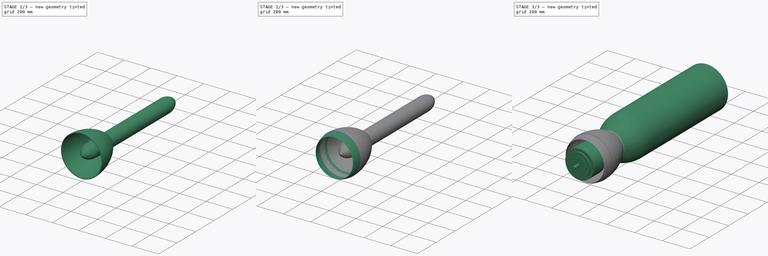
[diagram: build sequence overview — one tinted view per stage of 3, left to right]
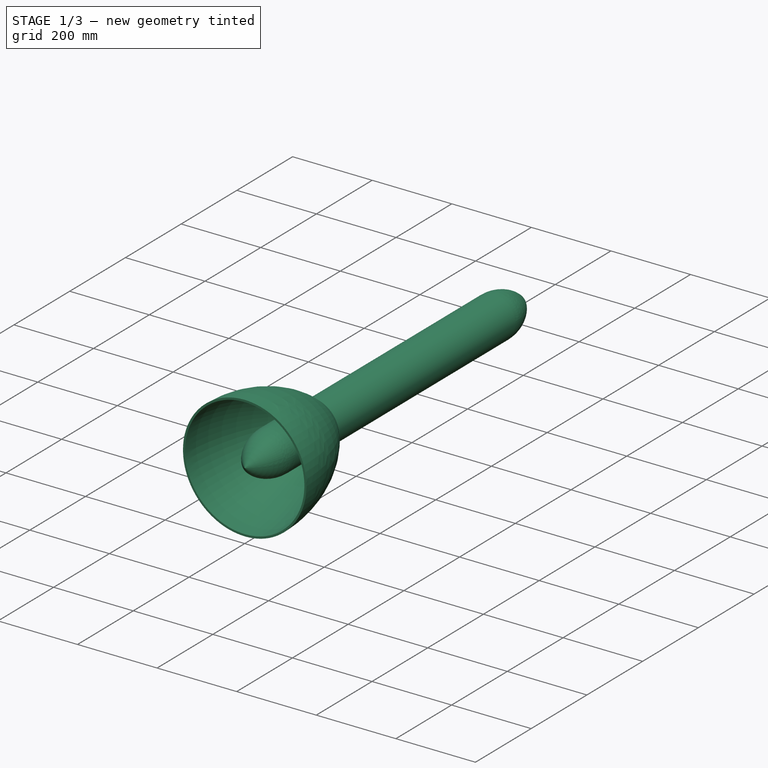
[diagram: stage 1 of 3 — iso view after this stage's code; geometry added in this stage tinted green]
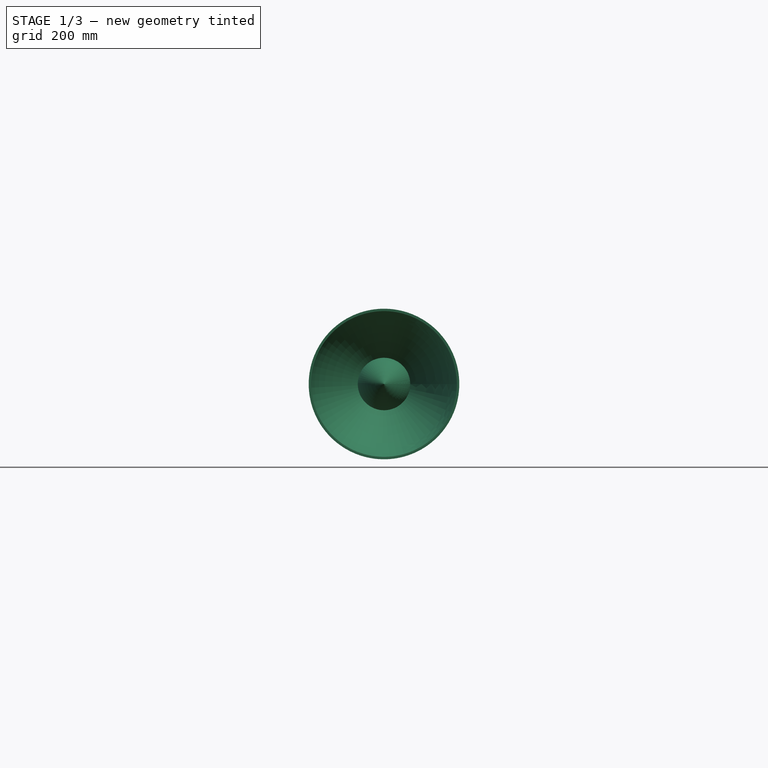
[diagram: stage 1 of 3 — front view after this stage's code; geometry added in this stage tinted green]
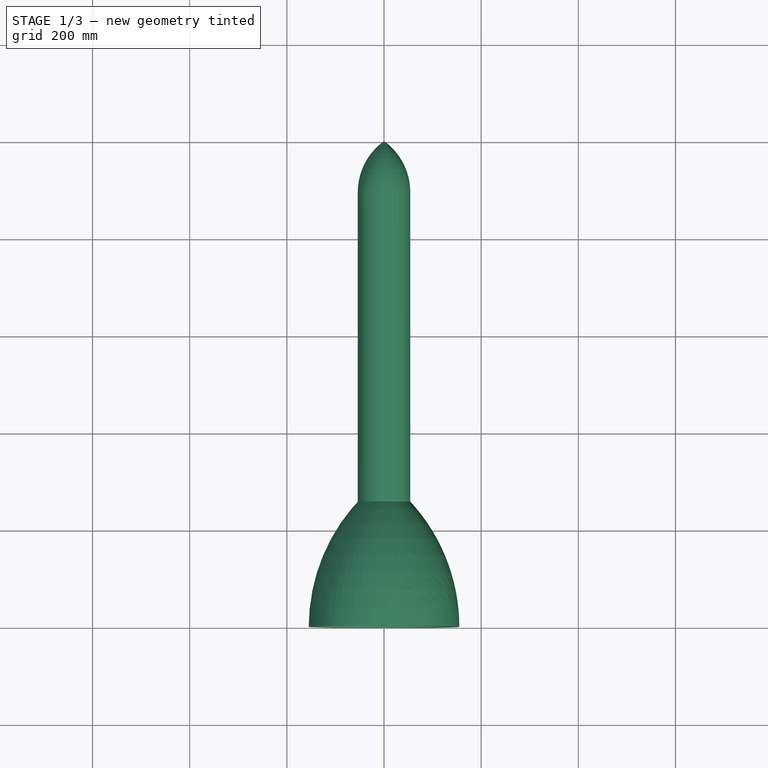
[diagram: stage 1 of 3 — top view after this stage's code; geometry added in this stage tinted green]
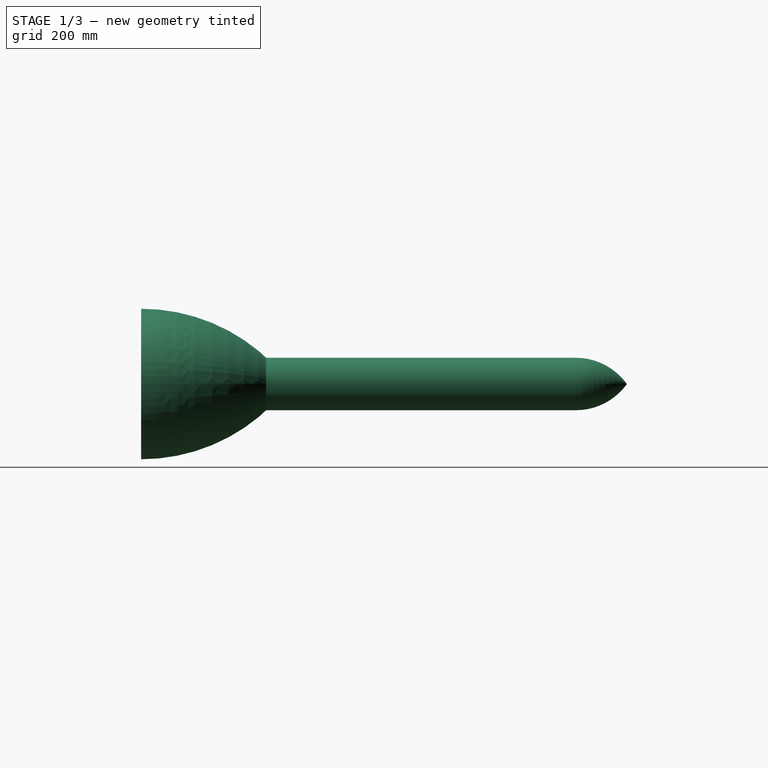
[diagram: stage 1 of 3 — right view after this stage's code; geometry added in this stage tinted green]
FCSTD DOCUMENT  (FreeCAD 0.18R16131 (Git))
Label: MAIN
License: All rights reserved
LicenseURL: http://en.wikipedia.org/wiki/All_rights_reserved
objects: Sketcher::SketchObject×5, PartDesign::Revolution×5, PartDesign::Body×5
note: 20 computed .brp shape members not serialized (recipe doc carries the construction recipe); baked Part::Feature solids carry a one-line shape summary decoded from their .brp

FEATURE [PartDesign::Body] Body002  label="protector"
  Group = -> [Sketch003,Revolution002]
  Origin = -> Origin002
  Tip = -> Revolution002
FEATURE [Sketcher::SketchObject] Sketch004  label="nose-pointy-SC"
  MapMode = 5
  Support = -> [XY_Plane003]
  sketch-geometry (4):
    g0: ArcOfCircle CenterX=-225 CenterY=0 CenterZ=0 NormalX=0 NormalY=0 NormalZ=1 AngleXU=0 Radius=375 StartAngle=0 EndAngle=0.927295
    g1: ArcOfCircle CenterX=-225 CenterY=0 CenterZ=0 NormalX=0 NormalY=0 NormalZ=1 AngleXU=0 Radius=380 StartAngle=0 EndAngle=0.937128
    g2: LineSegment StartX=155 StartY=0 StartZ=0 EndX=150 EndY=0 EndZ=0
    g3: LineSegment StartX=2.84e-14 StartY=300 StartZ=0 EndX=-5.68e-14 EndY=306.227 EndZ=0
  constraints (13):
    c: PointOnObject(g0,g-1)
    c: PointOnObject(g0,g-1)
    c: Coincident(g1,g0)
    c: PointOnObject(g1,g-2)
    c: PointOnObject(g1,g-1)
    c: Coincident(g2,g1)
    c: Coincident(g2,g0)
    c: PointOnObject(g0,g-2)
    c: Coincident(g3,g0)
    c: Coincident(g3,g1)
    c: Distance(g2) = 5
    c: DistanceY(g-1,g0) = 300
    c: DistanceX(g-1,g0) = 150
FEATURE [PartDesign::Revolution] Revolution003  label="nose-pointy-rev"
  Angle = 360
  Axis = (0,1,0)
  Base = (0,0,0)
  Profile = -> Sketch004
  ReferenceAxis = -> Sketch004 [V_Axis]
  Reversed = true
FEATURE [PartDesign::Body] Body003  label="nose-pointy"
  Group = -> [Sketch004,Revolution003]
  Origin = -> Origin003
  Placement = pos=(0,1200,0) rot=(0,0,1;0rad)
  Tip = -> Revolution003
FEATURE [Sketcher::SketchObject] Sketch005
  MapMode = 5
  Support = -> [XY_Plane004]
  sketch-geometry (8):
    g0: ArcOfCircle CenterX=-75 CenterY=104.957 CenterZ=0 NormalX=0 NormalY=0 NormalZ=1 AngleXU=0 Radius=129 StartAngle=5.33283 EndAngle=6.28319
    g1: LineSegment StartX=54 StartY=104.957 StartZ=0 EndX=54 EndY=895.043 EndZ=0
    g2: ArcOfCircle CenterX=-75 CenterY=895.043 CenterZ=0 NormalX=0 NormalY=0 NormalZ=1 AngleXU=0 Radius=129 StartAngle=1e-16 EndAngle=0.950354
    g3: ArcOfCircle CenterX=-75 CenterY=895.043 CenterZ=0 NormalX=0 NormalY=0 NormalZ=1 AngleXU=0 Radius=125 StartAngle=0 EndAngle=0.927295
    g4: ArcOfCircle CenterX=-75 CenterY=104.957 CenterZ=0 NormalX=0 NormalY=0 NormalZ=1 AngleXU=0 Radius=125 StartAngle=5.35589 EndAngle=6.28318
    g5: LineSegment StartX=50 StartY=104.957 StartZ=0 EndX=50 EndY=895.043 EndZ=0
    g6: LineSegment StartX=-3.695e-13 StartY=0 StartZ=0 EndX=4.26e-14 EndY=4.95713 EndZ=0
    g7: LineSegment StartX=-3.837e-13 StartY=1000 StartZ=0 EndX=0 EndY=995.043 EndZ=0
  constraints (23):
    c: Coincident(g0,g-1)
    c: Vertical(g1)
    c: PointOnObject(g2,g-2)
    c: Tangent(g2,g1) = -1.5708
    c: Tangent(g1,g0) = -1.5708
    c: Equal(g2,g0)
    c: Coincident(g3,g2)
    c: PointOnObject(g3,g-2)
    c: Coincident(g4,g0)
    c: PointOnObject(g4,g-2)
    c: Coincident(g5,g4)
    c: Coincident(g5,g3)
    c: Vertical(g5)
    c: Coincident(g6,g0)
    c: Coincident(g6,g4)
    c: Coincident(g7,g2)
    c: DistanceX(g3,g1) = 4
    c: Equal(g3,g4)
    c: Coincident(g7,g3)
    c: Horizontal(g3,g1)
    c: DistanceX(g-2,g3) = 50
    c: DistanceY(g3,g3) = 100
    c: DistanceY(g0,g2) = 1000
FEATURE [PartDesign::Revolution] Revolution004
  Angle = 360
  Axis = (0,1,0)
  Base = (0,0,0)
  Profile = -> Sketch005
  ReferenceAxis = -> Sketch005 [V_Axis]
  Reversed = true
FEATURE [PartDesign::Body] Body004  label="floater"
  Group = -> [Sketch005,Revolution004]
  Origin = -> Origin004
  Placement = pos=(0,200,600) rot=(0,0,1;0rad)
  Tip = -> Revolution004
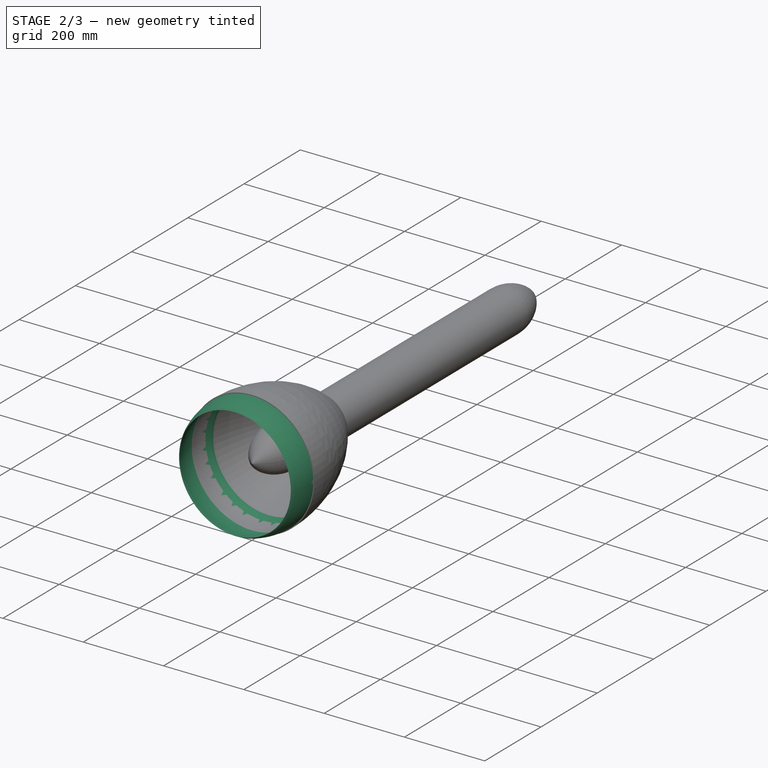
[diagram: stage 2 of 3 — iso view after this stage's code; geometry added in this stage tinted green]
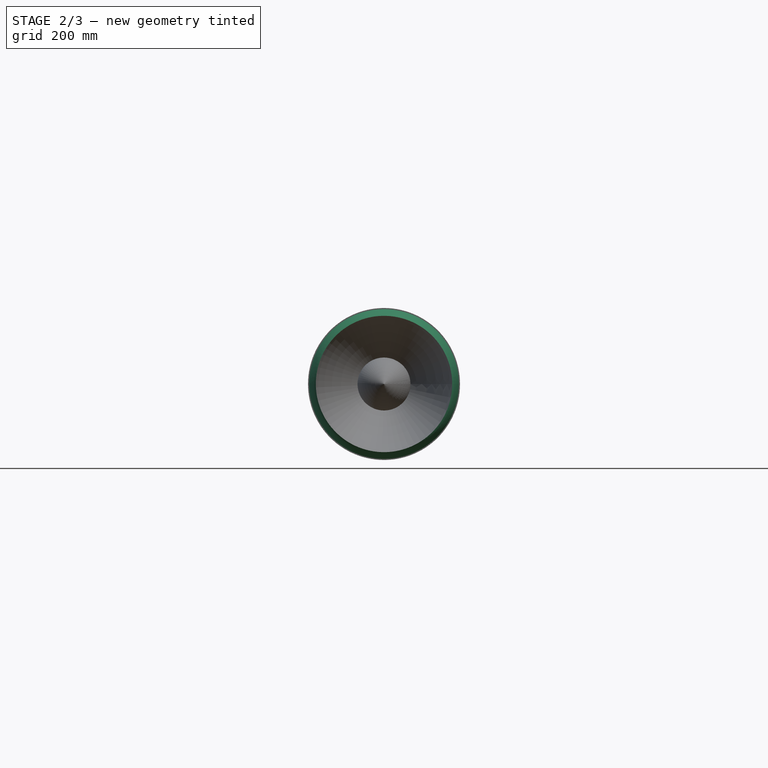
[diagram: stage 2 of 3 — front view after this stage's code; geometry added in this stage tinted green]
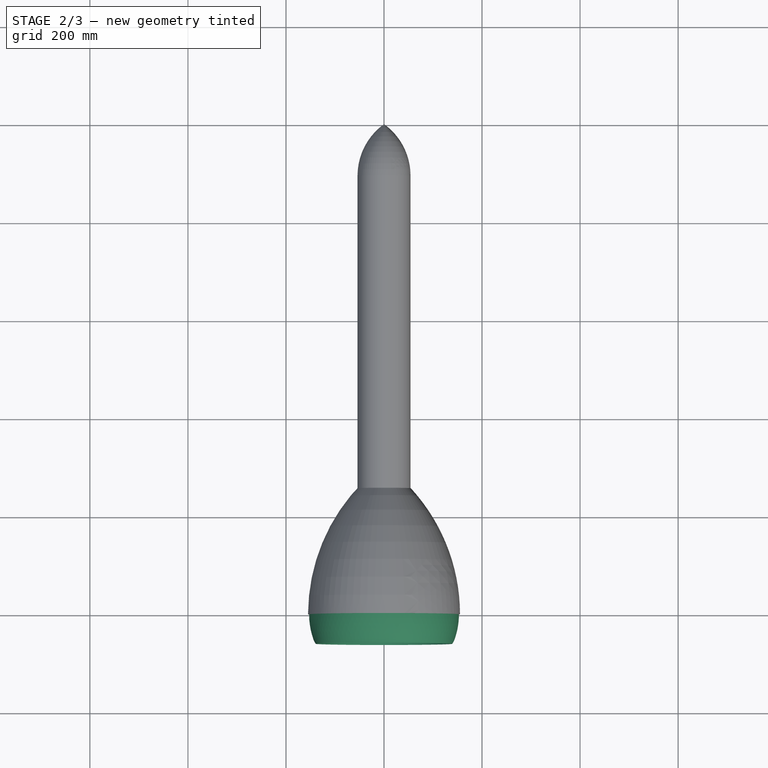
[diagram: stage 2 of 3 — top view after this stage's code; geometry added in this stage tinted green]
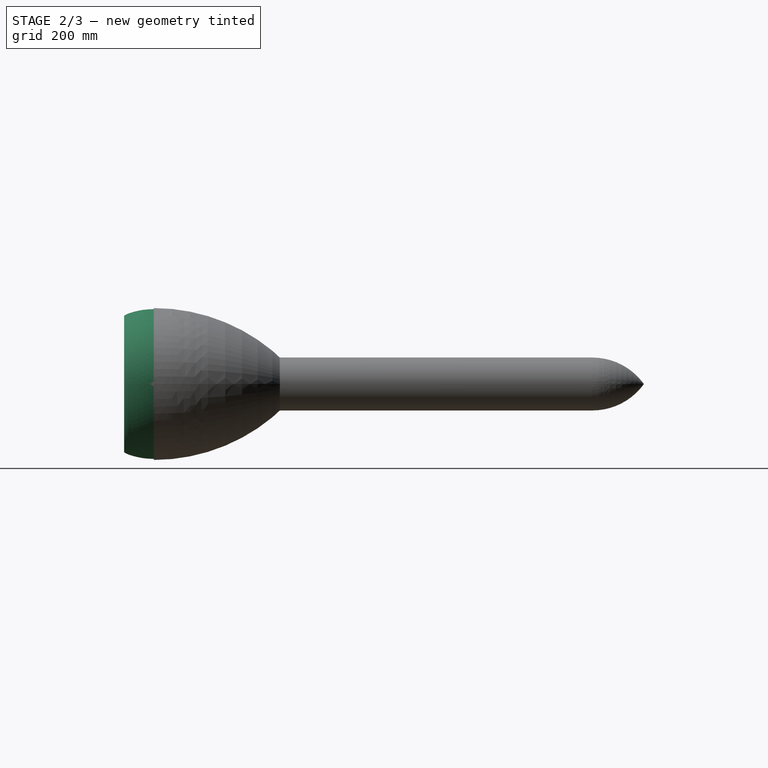
[diagram: stage 2 of 3 — right view after this stage's code; geometry added in this stage tinted green]
FEATURE [PartDesign::Body] Body001  label="hull"
  Group = -> [Sketch001,Revolution001]
  Origin = -> Origin001
  Tip = -> Revolution001
FEATURE [Sketcher::SketchObject] Sketch003
  MapMode = 5
  Support = -> [XY_Plane002]
  sketch-geometry (7):
    g0: ArcOfCircle CenterX=0 CenterY=0 CenterZ=0 NormalX=0 NormalY=0 NormalZ=1 AngleXU=0 Radius=150 StartAngle=5.93412 EndAngle=6.63225
    g1: ArcOfCircle CenterX=0 CenterY=0 CenterZ=0 NormalX=0 NormalY=0 NormalZ=1 AngleXU=0 Radius=152.823 StartAngle=5.94083 EndAngle=6.62554
    g2: ArcOfCircle CenterX=113.009 CenterY=40.2748 CenterZ=0 NormalX=0 NormalY=0 NormalZ=1 AngleXU=0 Radius=32.8511 StartAngle=0.342352 EndAngle=0.65564
    g3: ArcOfCircle CenterX=171.824 CenterY=62.5388 CenterZ=0 NormalX=0 NormalY=0 NormalZ=1 AngleXU=0 Radius=32.8511 StartAngle=3.2097 EndAngle=3.49066
    g4: ArcOfCircle CenterX=171.824 CenterY=-62.5388 CenterZ=0 NormalX=0 NormalY=0 NormalZ=1 AngleXU=0 Radius=32.8511 StartAngle=2.79253 EndAngle=3.07348
    g5: ArcOfCircle CenterX=113.009 CenterY=-40.2748 CenterZ=0 NormalX=0 NormalY=0 NormalZ=1 AngleXU=0 Radius=32.8511 StartAngle=5.62755 EndAngle=5.94083
    g6: LineSegment [constr] StartX=0 StartY=0 StartZ=0 EndX=140.954 EndY=51.303 EndZ=0
  constraints (20):
    c: Coincident(g1,g0)
    c: Coincident(g3,g2)
    c: Tangent(g3,g0) = 1.5708
    c: Tangent(g2,g1) = -1.5708
    c: Coincident(g0,g-1)
    c: DistanceX(g0,g1) = 3
    c: Horizontal(g0,g1)
    c: Coincident(g5,g4)
    c: Tangent(g4,g0) = 1.5708
    c: Tangent(g5,g1) = -1.5708
    c: Horizontal(g0,g1)
    c: Vertical(g0,g0)
    c: Equal(g5,g4)
    c: Equal(g3,g2)
    c: Radius(g0) = 150
    c: Coincident(g6,g0)
    c: Coincident(g6,g0)
    c: Angle(g-1,g6) = 0.349066
    c: Equal(g4,g3)
    c: DistanceY(g0,g2) = 9
FEATURE [PartDesign::Revolution] Revolution002
  Angle = 360
  Axis = (0,1,0)
  Base = (0,0,0)
  Profile = -> Sketch003
  ReferenceAxis = -> Sketch003 [V_Axis]
  Reversed = true
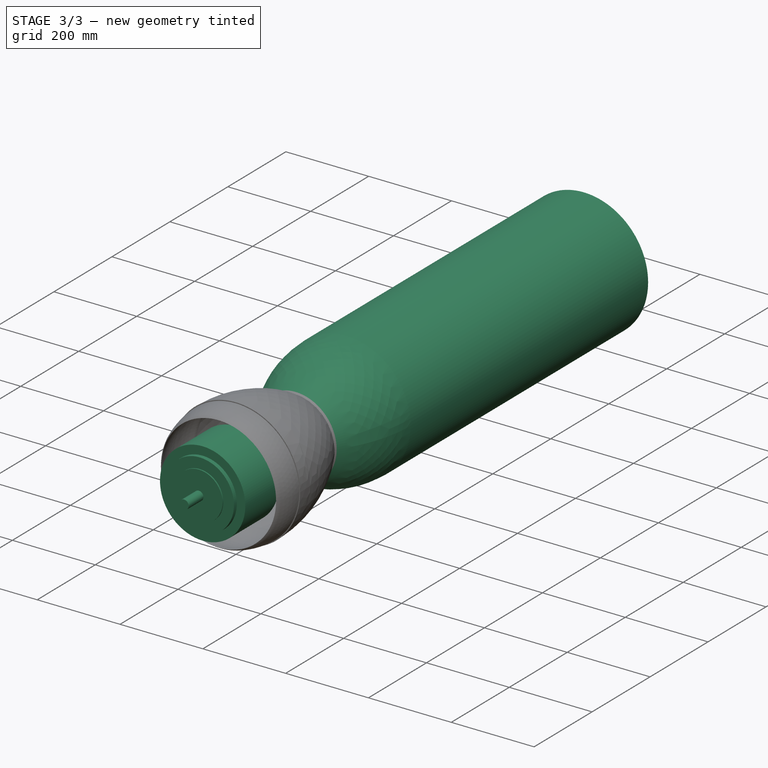
[diagram: stage 3 of 3 — iso view after this stage's code; geometry added in this stage tinted green]
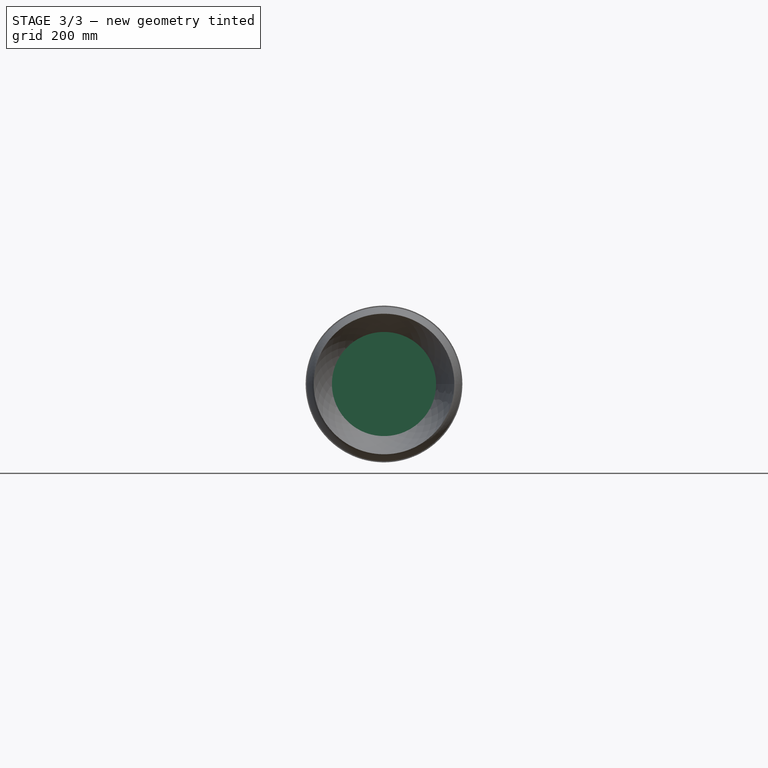
[diagram: stage 3 of 3 — front view after this stage's code; geometry added in this stage tinted green]
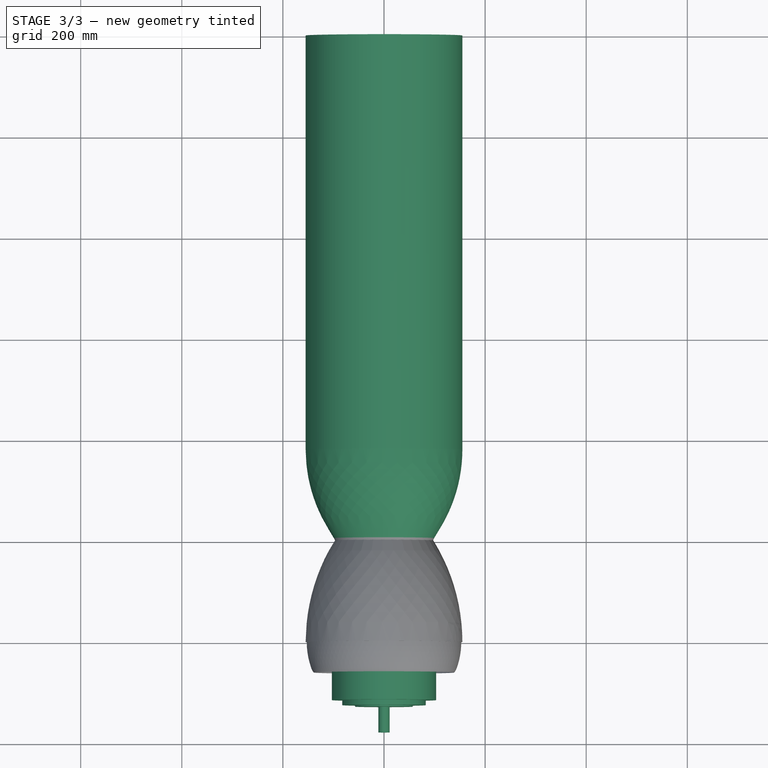
[diagram: stage 3 of 3 — top view after this stage's code; geometry added in this stage tinted green]
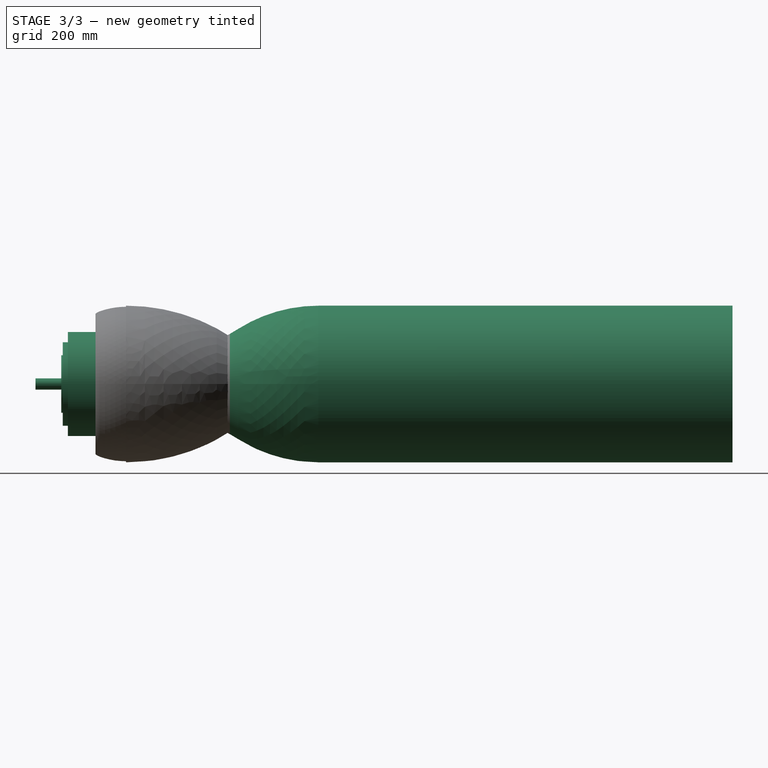
[diagram: stage 3 of 3 — right view after this stage's code; geometry added in this stage tinted green]
FEATURE [Sketcher::SketchObject] Sketch  label="motor-SC"
  MapMode = 5
  Support = -> [XY_Plane]
  sketch-geometry (10):
    g0: LineSegment StartX=0 StartY=0 StartZ=0 EndX=103 EndY=0 EndZ=0
    g1: LineSegment StartX=103 StartY=0 StartZ=0 EndX=103 EndY=-115 EndZ=0
    g2: LineSegment StartX=103 StartY=-115 StartZ=0 EndX=82.5 EndY=-115 EndZ=0
    g3: LineSegment StartX=82.5 StartY=-115 StartZ=0 EndX=82.5 EndY=-125 EndZ=0
    g4: LineSegment StartX=82.5 StartY=-125 StartZ=0 EndX=57 EndY=-125 EndZ=0
    g5: LineSegment StartX=57 StartY=-125 StartZ=0 EndX=57 EndY=-128 EndZ=0
    g6: LineSegment StartX=57 StartY=-128 StartZ=0 EndX=11.1 EndY=-128 EndZ=0
    g7: LineSegment StartX=11.1 StartY=-128 StartZ=0 EndX=11.1 EndY=-179 EndZ=0
    g8: LineSegment StartX=11.1 StartY=-179 StartZ=0 EndX=0 EndY=-179 EndZ=0
    g9: LineSegment StartX=0 StartY=-179 StartZ=0 EndX=0 EndY=0 EndZ=0
  constraints (29):
    c: Coincident(g-1,g0)
    c: Vertical(g1)
    c: Coincident(g1,g2)
    c: Horizontal(g2)
    c: Coincident(g2,g3)
    c: Coincident(g3,g4)
    c: Horizontal(g4)
    c: Coincident(g4,g5)
    c: Vertical(g5)
    c: Coincident(g5,g6)
    c: Horizontal(g6)
    c: Vertical(g7)
    c: Coincident(g7,g8)
    c: PointOnObject(g8,g-2)
    c: Coincident(g8,g9)
    c: Coincident(g9,g0)
    c: Horizontal(g8)
    c: Vertical(g3)
    c: Coincident(g6,g7)
    c: DistanceX(g-1,g3) = 82.5
    c: DistanceX(g-1,g5) = 57
    c: Distance(g8) = 11.1
    c: Distance(g5) = 3
    c: Distance(g3) = 10
    c: PointOnObject(g0,g-1)
    c: DistanceX(g0,g1) = 103
    c: DistanceY(g5,g0) = 128
    c: Distance(g9) = 179
    c: Coincident(g1,g0)
FEATURE [PartDesign::Revolution] Revolution
  Angle = 360
  Axis = (0,1,0)
  Base = (0,0,0)
  Profile = -> Sketch
  ReferenceAxis = -> Sketch [V_Axis]
  Reversed = true
FEATURE [PartDesign::Body] Body  label="motor"
  Group = -> [Sketch,Revolution]
  Origin = -> Origin
  Placement = pos=(0,350,0) rot=(0,0,1;0rad)
  Tip = -> Revolution
FEATURE [Sketcher::SketchObject] Sketch001  label="hull-sc"
  MapMode = 5
  Support = -> [XY_Plane001]
  sketch-geometry (8):
    g0: LineSegment StartX=150 StartY=1200 StartZ=0 EndX=155 EndY=1200 EndZ=0
    g1: LineSegment StartX=155 StartY=1200 StartZ=0 EndX=155 EndY=380.769 EndZ=0
    g2: LineSegment StartX=150 StartY=380.769 StartZ=0 EndX=150 EndY=1200 EndZ=0
    g3: LineSegment StartX=45 StartY=5.11e-14 StartZ=0 EndX=40 EndY=5.11e-14 EndZ=0
    g4: ArcOfCircle CenterX=-142.101 CenterY=380.769 CenterZ=0 NormalX=0 NormalY=0 NormalZ=1 AngleXU=0 Radius=292.101 StartAngle=5.72072 EndAngle=6.28319
    g5: ArcOfCircle CenterX=461.923 CenterY=0 CenterZ=0 NormalX=0 NormalY=0 NormalZ=1 AngleXU=0 Radius=421.923 StartAngle=2.57913 EndAngle=3.14159
    g6: ArcOfCircle CenterX=461.923 CenterY=0 CenterZ=0 NormalX=0 NormalY=0 NormalZ=1 AngleXU=0 Radius=416.923 StartAngle=2.57913 EndAngle=3.14159
    g7: ArcOfCircle CenterX=-142.101 CenterY=380.769 CenterZ=0 NormalX=0 NormalY=0 NormalZ=1 AngleXU=0 Radius=297.101 StartAngle=5.72072 EndAngle=6.28319
  constraints (23):
    c: Coincident(g0,g1)
    c: Coincident(g2,g0)
    c: Horizontal(g0)
    c: Vertical(g1)
    c: Vertical(g2)
    c: Horizontal(g3)
    c: Horizontal(g1,g2)
    c: DistanceX(g-1,g0) = 150
    c: Distance(g0) = 5
    c: DistanceX(g-2,g3) = 40
    c: PointOnObject(g3,g-1)
    c: Coincident(g4,g2)
    c: Coincident(g5,g3)
    c: Coincident(g6,g5)
    c: Coincident(g6,g3)
    c: Coincident(g7,g4)
    c: Tangent(g7,g1) = 1.5708
    c: Tangent(g7,g6) = 1.5708
    c: Perpendicular(g6,g3)
    c: Tangent(g5,g4) = 1.5708
    c: DistanceY(g-1,g0) = 1200
    c: DistanceX(g-1,g4) = 105
    c: DistanceY(g-1,g4) = 225
FEATURE [PartDesign::Revolution] Revolution001  label="hull-rev"
  Angle = 360
  Axis = (0,1,0)
  Base = (0,0,0)
  Profile = -> Sketch001
  ReferenceAxis = -> Sketch001 [V_Axis]
  Reversed = true
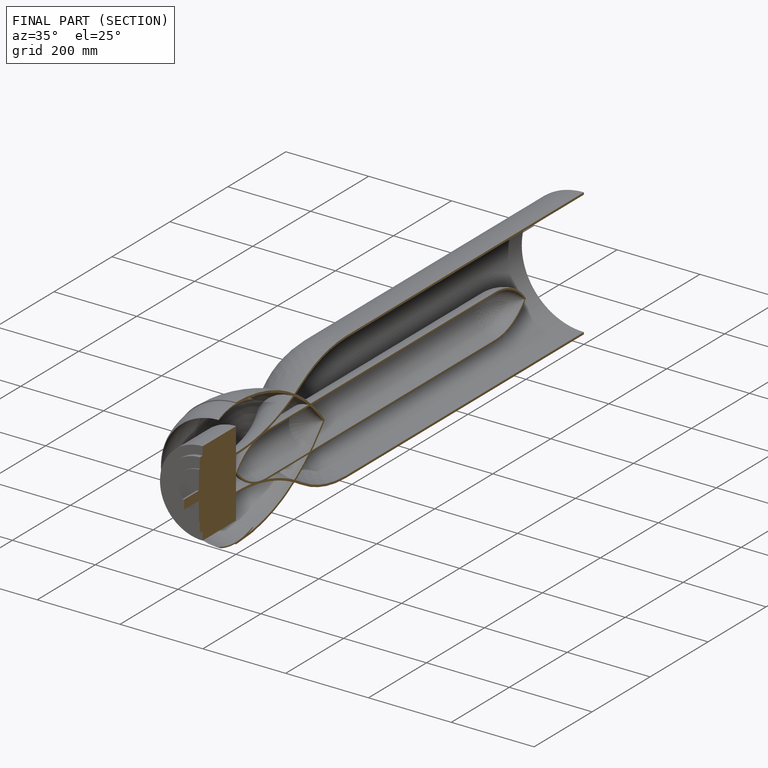
[diagram: finished part — half-section view (interior)]
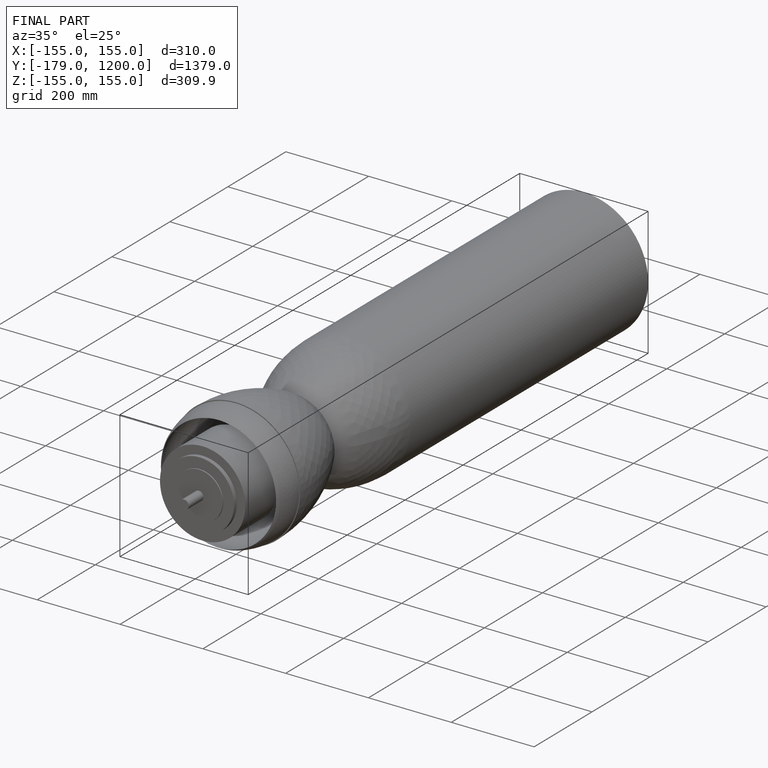
[diagram: finished part — iso view with bounding-box wireframe]
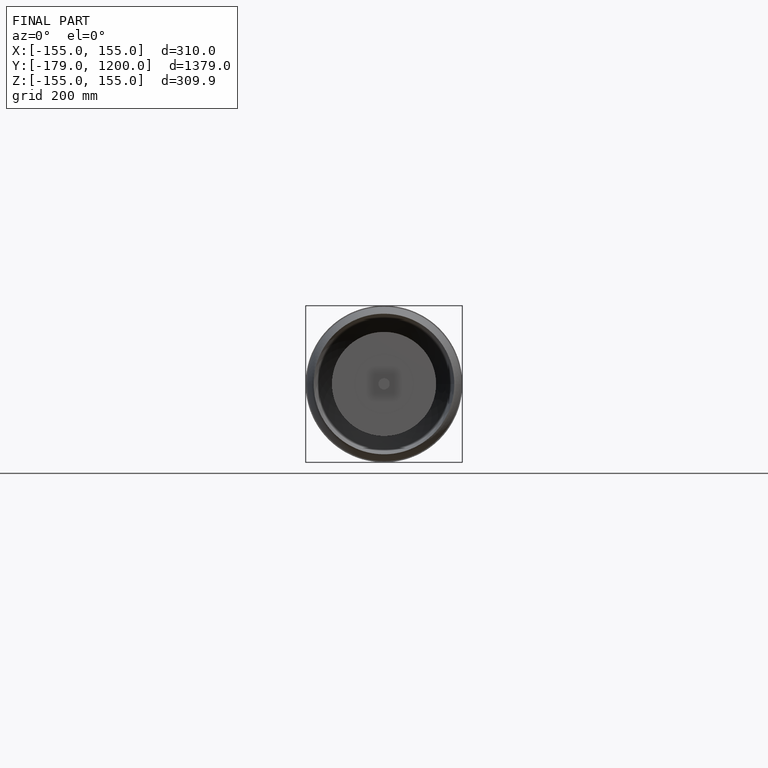
[diagram: finished part — front view with bounding-box wireframe]
